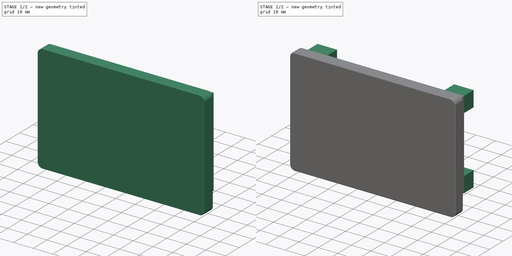
[diagram: build sequence overview — one tinted view per stage of 2, left to right]
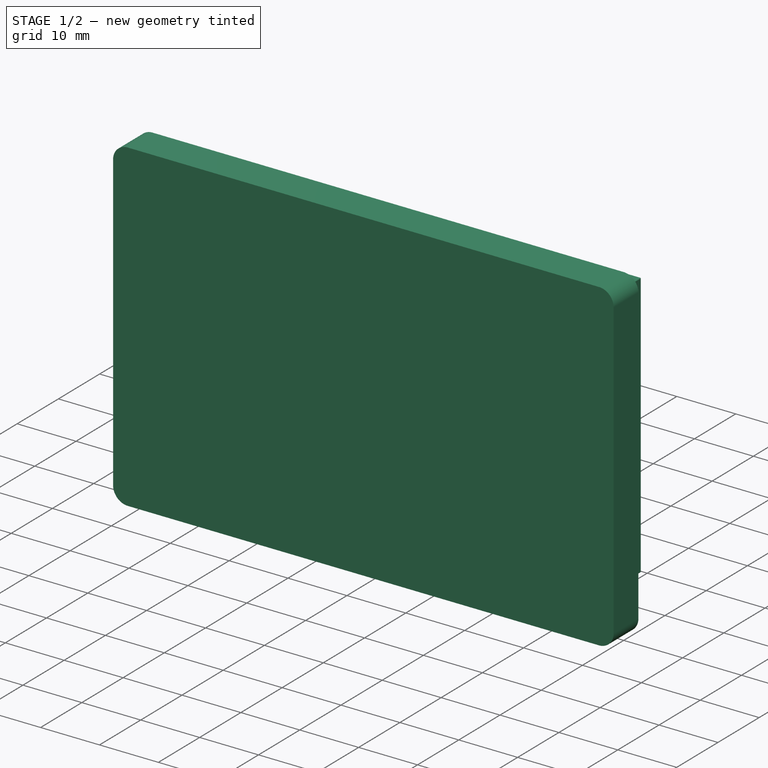
[diagram: stage 1 of 2 — iso view after this stage's code; geometry added in this stage tinted green]
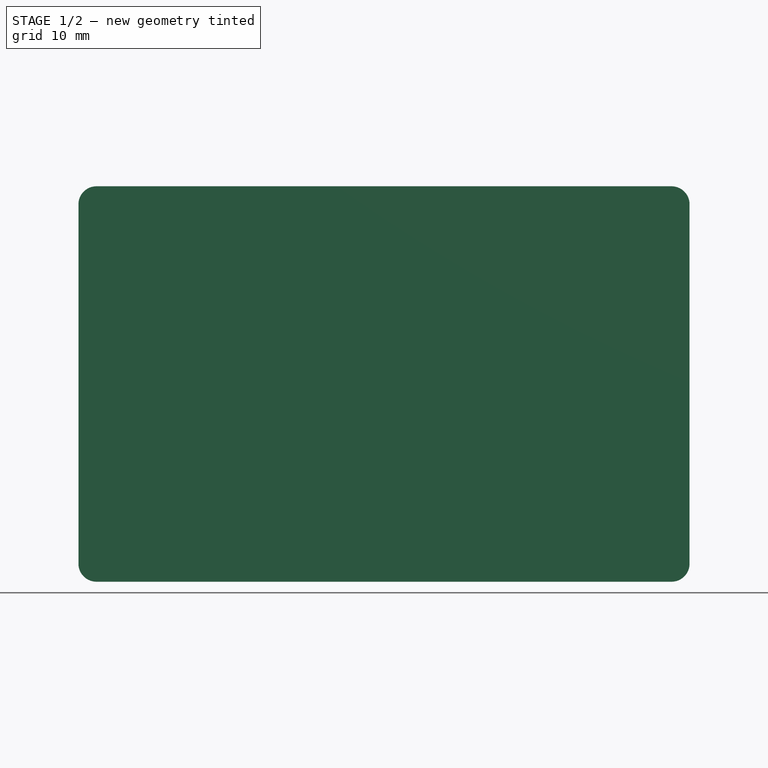
[diagram: stage 1 of 2 — front view after this stage's code; geometry added in this stage tinted green]
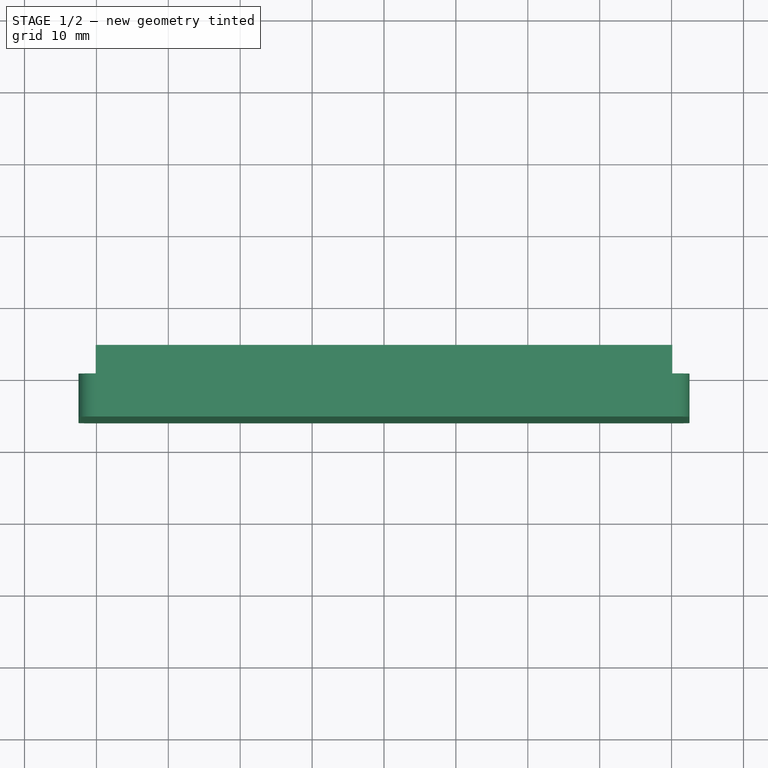
[diagram: stage 1 of 2 — top view after this stage's code; geometry added in this stage tinted green]
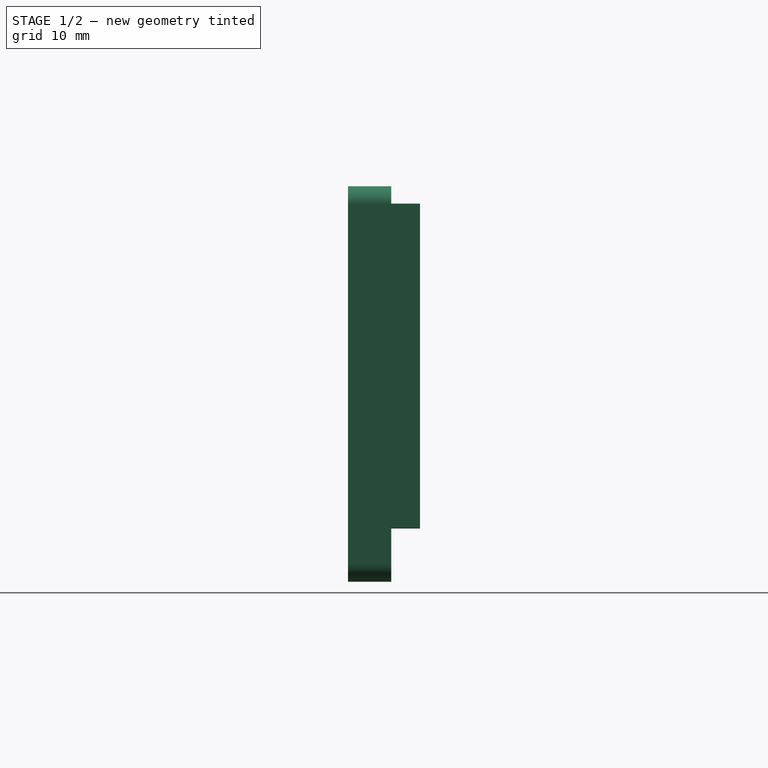
[diagram: stage 1 of 2 — right view after this stage's code; geometry added in this stage tinted green]
FCSTD DOCUMENT  (FreeCAD 0.20R29410 (Git))
Label: wood_side_panel
License: All rights reserved
LicenseURL: http://en.wikipedia.org/wiki/All_rights_reserved
objects: Sketcher::SketchObject×4, PartDesign::Pad×3, PartDesign::Fillet×1, PartDesign::Body×1
note: 13 computed .brp shape members not serialized (recipe doc carries the construction recipe); baked Part::Feature solids carry a one-line shape summary decoded from their .brp

FEATURE [Sketcher::SketchObject] Sketch007  label="SkBase"
  FullyConstrained = true
  MapMode = 5
  Placement = pos=(0,0,0) rot=(1,0,0;1.5708rad)
  Support = -> [XZ_Plane002]
  sketch-geometry (20):
    g0: ArcOfCircle CenterX=-40 CenterY=22.5 CenterZ=0 NormalX=0 NormalY=0 NormalZ=1 AngleXU=0 Radius=2.5 StartAngle=1.5708 EndAngle=3.14159
    g1: LineSegment StartX=-40 StartY=25 StartZ=0 EndX=40 EndY=25 EndZ=0
    g2: ArcOfCircle CenterX=40 CenterY=22.5 CenterZ=0 NormalX=0 NormalY=0 NormalZ=1 AngleXU=0 Radius=2.5 StartAngle=0 EndAngle=1.5708
    g3: LineSegment StartX=42.5 StartY=22.5 StartZ=0 EndX=42.5 EndY=-27.5 EndZ=0
    g4: ArcOfCircle CenterX=40 CenterY=-27.5 CenterZ=0 NormalX=0 NormalY=0 NormalZ=1 AngleXU=0 Radius=2.5 StartAngle=4.71239 EndAngle=6.28319
    g5: LineSegment StartX=40 StartY=-30 StartZ=0 EndX=-40 EndY=-30 EndZ=0
    g6: ArcOfCircle CenterX=-40 CenterY=-27.5 CenterZ=0 NormalX=0 NormalY=0 NormalZ=1 AngleXU=0 Radius=2.5 StartAngle=3.14159 EndAngle=4.71239
    g7: LineSegment StartX=-42.5 StartY=-27.5 StartZ=0 EndX=-42.5 EndY=22.5 EndZ=0
    g8: GeomPoint X=-42.5 Y=25 Z=0
    g9: GeomPoint X=42.5 Y=-30 Z=0
    g10: ArcOfCircle CenterX=-40 CenterY=22.5 CenterZ=0 NormalX=0 NormalY=0 NormalZ=1 AngleXU=0 Radius=0.1 StartAngle=1.5708 EndAngle=3.14159
    g11: LineSegment StartX=-40 StartY=22.6 StartZ=0 EndX=40 EndY=22.6 EndZ=0
    g12: ArcOfCircle CenterX=40 CenterY=22.5 CenterZ=0 NormalX=0 NormalY=0 NormalZ=1 AngleXU=0 Radius=0.1 StartAngle=4.5e-15 EndAngle=1.5708
    g13: LineSegment StartX=40.1 StartY=22.5 StartZ=0 EndX=40.1 EndY=-22.5 EndZ=0
    g14: ArcOfCircle CenterX=40 CenterY=-22.5 CenterZ=0 NormalX=0 NormalY=0 NormalZ=1 AngleXU=0 Radius=0.1 StartAngle=4.71239 EndAngle=6.28319
    g15: LineSegment StartX=40 StartY=-22.6 StartZ=0 EndX=-40 EndY=-22.6 EndZ=0
    g16: ArcOfCircle CenterX=-40 CenterY=-22.5 CenterZ=0 NormalX=0 NormalY=0 NormalZ=1 AngleXU=0 Radius=0.1 StartAngle=3.14159 EndAngle=4.71239
    g17: LineSegment StartX=-40.1 StartY=-22.5 StartZ=0 EndX=-40.1 EndY=22.5 EndZ=0
    g18: GeomPoint X=-40.1 Y=22.6 Z=0
    g19: GeomPoint X=40.1 Y=-22.6 Z=0
  constraints (44):
    c: Tangent(g0,g1) = 1.5708
    c: Tangent(g1,g2) = 1.5708
    c: Tangent(g2,g3) = 1.5708
    c: Tangent(g3,g4) = 1.5708
    c: Tangent(g4,g5) = 1.5708
    c: Tangent(g5,g6) = 1.5708
    c: Tangent(g6,g7) = 1.5708
    c: Tangent(g7,g0) = 1.5708
    c: Horizontal(g1)
    c: Horizontal(g5)
    c: Vertical(g3)
    c: Vertical(g7)
    c: Equal(g2,g4)
    c: Equal(g4,g6)
    c: PointOnObject(g8,g1)
    c: PointOnObject(g8,g7)
    c: PointOnObject(g9,g3)
    c: PointOnObject(g9,g5)
    c: Distance(g2,g7) = 85
    c: Distance(g4,g1) = 55
    c: Symmetric(g2,g0,g-2)
    c: Radius(g2) = 2.5
    c: Tangent(g10,g11) = 1.5708
    c: Tangent(g11,g12) = 1.5708
    c: Tangent(g12,g13) = 1.5708
    c: Tangent(g13,g14) = 1.5708
    c: Tangent(g14,g15) = 1.5708
    c: Tangent(g15,g16) = 1.5708
    c: Tangent(g16,g17) = 1.5708
    c: Tangent(g17,g10) = 1.5708
    c: Horizontal(g11)
    c: Horizontal(g15)
    c: Vertical(g13)
    c: Vertical(g17)
    c: Equal(g14,g16)
    c: PointOnObject(g18,g11)
    c: PointOnObject(g18,g17)
    c: PointOnObject(g19,g13)
    c: PointOnObject(g19,g15)
    c: Radius(g10) = 0.1
    c: Symmetric(g12,g10,g-2)
    c: Coincident(g10,g0)
    c: Distance(g14,g2) = 45
    c: Symmetric(g2,g14,g-1)
FEATURE [Sketcher::SketchObject] Sketch008  label="skMain"
  ExternalGeometry = -> [Sketch007]
  FullyConstrained = true
  MapMode = 5
  Placement = pos=(0,0,0) rot=(1,0,0;1.5708rad)
  Support = -> [XZ_Plane002]
  sketch-geometry (10):
    g0: ArcOfCircle CenterX=-40 CenterY=22.5 CenterZ=0 NormalX=0 NormalY=0 NormalZ=1 AngleXU=0 Radius=2.5 StartAngle=1.5708 EndAngle=3.14159
    g1: LineSegment StartX=-40 StartY=25 StartZ=0 EndX=40 EndY=25 EndZ=0
    g2: ArcOfCircle CenterX=40 CenterY=22.5 CenterZ=0 NormalX=0 NormalY=0 NormalZ=1 AngleXU=0 Radius=2.5 StartAngle=4e-16 EndAngle=1.5708
    g3: LineSegment StartX=42.5 StartY=22.5 StartZ=0 EndX=42.5 EndY=-27.5 EndZ=0
    g4: ArcOfCircle CenterX=40 CenterY=-27.5 CenterZ=0 NormalX=0 NormalY=0 NormalZ=1 AngleXU=0 Radius=2.5 StartAngle=4.71239 EndAngle=6.28319
    g5: LineSegment StartX=40 StartY=-30 StartZ=0 EndX=-40 EndY=-30 EndZ=0
    g6: ArcOfCircle CenterX=-40 CenterY=-27.5 CenterZ=0 NormalX=0 NormalY=0 NormalZ=1 AngleXU=0 Radius=2.5 StartAngle=3.14159 EndAngle=4.71239
    g7: LineSegment StartX=-42.5 StartY=-27.5 StartZ=0 EndX=-42.5 EndY=22.5 EndZ=0
    g8: GeomPoint X=-42.5 Y=25 Z=0
    g9: GeomPoint X=42.5 Y=-30 Z=0
  constraints (22):
    c: Tangent(g0,g1) = 1.5708
    c: Tangent(g1,g2) = 1.5708
    c: Tangent(g2,g3) = 1.5708
    c: Tangent(g3,g4) = 1.5708
    c: Tangent(g4,g5) = 1.5708
    c: Tangent(g5,g6) = 1.5708
    c: Tangent(g6,g7) = 1.5708
    c: Tangent(g7,g0) = 1.5708
    c: Horizontal(g1)
    c: Horizontal(g5)
    c: Vertical(g3)
    c: Vertical(g7)
    c: Equal(g0,g2)
    c: Equal(g2,g4)
    c: Equal(g4,g6)
    c: PointOnObject(g8,g1)
    c: PointOnObject(g8,g7)
    c: PointOnObject(g9,g3)
    c: PointOnObject(g9,g5)
    c: Equal(g2,g-4)
    c: Coincident(g1,g-4)
    c: Coincident(g5,g-5)
FEATURE [PartDesign::Pad] Pad001  label="pdMain"
  Direction = (0,-1,-2e-16)
  Length = 6
  Length2 = 10
  Placement = pos=(0,0,0) rot=(1,0,0;1.5708rad)
  Profile = -> Sketch008
  ReferenceAxis = -> Sketch008 [N_Axis]
  Type = 0
FEATURE [Sketcher::SketchObject] Sketch009  label="skInside"
  ExternalGeometry = -> [Sketch007]
  FullyConstrained = true
  MapMode = 5
  Placement = pos=(0,0,0) rot=(1,0,0;1.5708rad)
  Support = -> [XZ_Plane002]
  sketch-geometry (10):
    g0: ArcOfCircle CenterX=-40 CenterY=22.5 CenterZ=0 NormalX=0 NormalY=0 NormalZ=1 AngleXU=0 Radius=0.1 StartAngle=1.5708 EndAngle=3.14159
    g1: LineSegment StartX=-40 StartY=22.6 StartZ=0 EndX=40 EndY=22.6 EndZ=0
    g2: ArcOfCircle CenterX=40 CenterY=22.5 CenterZ=0 NormalX=0 NormalY=0 NormalZ=1 AngleXU=0 Radius=0.1 StartAngle=4.8e-15 EndAngle=1.5708
    g3: LineSegment StartX=40.1 StartY=22.5 StartZ=0 EndX=40.1 EndY=-22.5 EndZ=0
    g4: ArcOfCircle CenterX=40 CenterY=-22.5 CenterZ=0 NormalX=0 NormalY=0 NormalZ=1 AngleXU=0 Radius=0.1 StartAngle=4.71239 EndAngle=6.28319
    g5: LineSegment StartX=40 StartY=-22.6 StartZ=0 EndX=-40 EndY=-22.6 EndZ=0
    g6: ArcOfCircle CenterX=-40 CenterY=-22.5 CenterZ=0 NormalX=0 NormalY=0 NormalZ=1 AngleXU=0 Radius=0.1 StartAngle=3.14159 EndAngle=4.71239
    g7: LineSegment StartX=-40.1 StartY=-22.5 StartZ=0 EndX=-40.1 EndY=22.5 EndZ=0
    g8: GeomPoint X=-40.1 Y=22.6 Z=0
    g9: GeomPoint X=40.1 Y=-22.6 Z=0
  constraints (22):
    c: Tangent(g0,g1) = 1.5708
    c: Tangent(g1,g2) = 1.5708
    c: Tangent(g2,g3) = 1.5708
    c: Tangent(g3,g4) = 1.5708
    c: Tangent(g4,g5) = 1.5708
    c: Tangent(g5,g6) = 1.5708
    c: Tangent(g6,g7) = 1.5708
    c: Tangent(g7,g0) = 1.5708
    c: Horizontal(g1)
    c: Horizontal(g5)
    c: Vertical(g3)
    c: Vertical(g7)
    c: Equal(g0,g2)
    c: Equal(g2,g4)
    c: Equal(g4,g6)
    c: PointOnObject(g8,g1)
    c: PointOnObject(g8,g7)
    c: PointOnObject(g9,g3)
    c: PointOnObject(g9,g5)
    c: Equal(g2,g-4)
    c: Coincident(g2,g-4)
    c: Coincident(g5,g-5)
FEATURE [PartDesign::Pad] Pad002  label="pdInside"
  BaseFeature = -> Pad001
  Direction = (0,-1,-2e-16)
  Length = 4
  Length2 = 10
  Placement = pos=(0,0,0) rot=(1,0,0;1.5708rad)
  Profile = -> Sketch009
  ReferenceAxis = -> Sketch009 [N_Axis]
  Reversed = true
  Type = 0
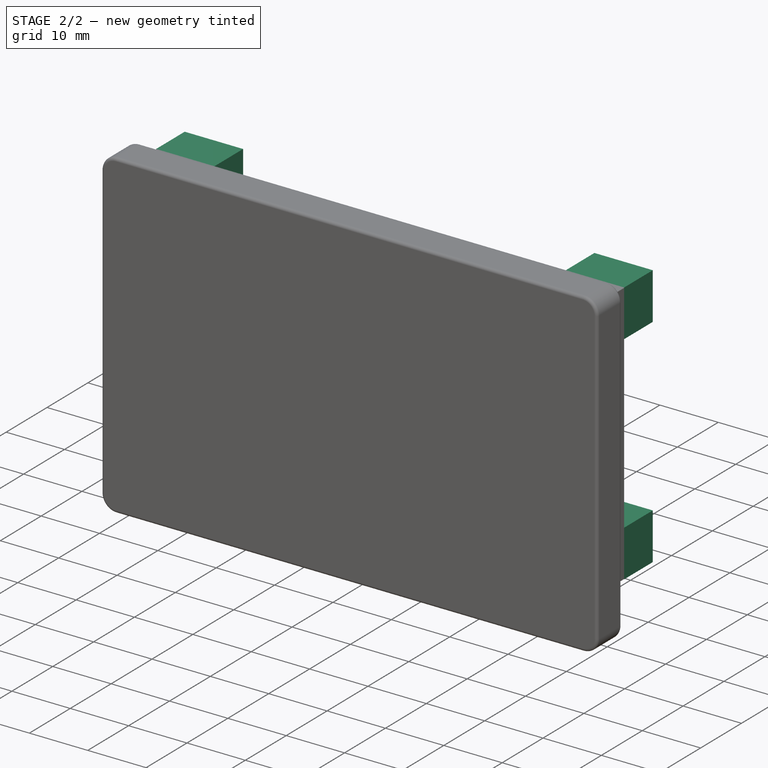
[diagram: stage 2 of 2 — iso view after this stage's code; geometry added in this stage tinted green]
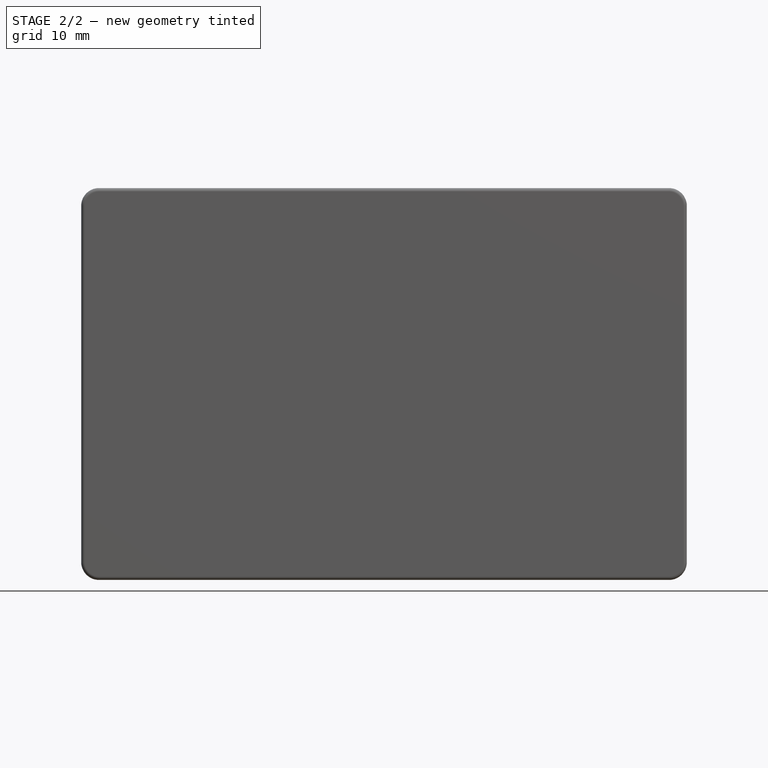
[diagram: stage 2 of 2 — front view after this stage's code; geometry added in this stage tinted green]
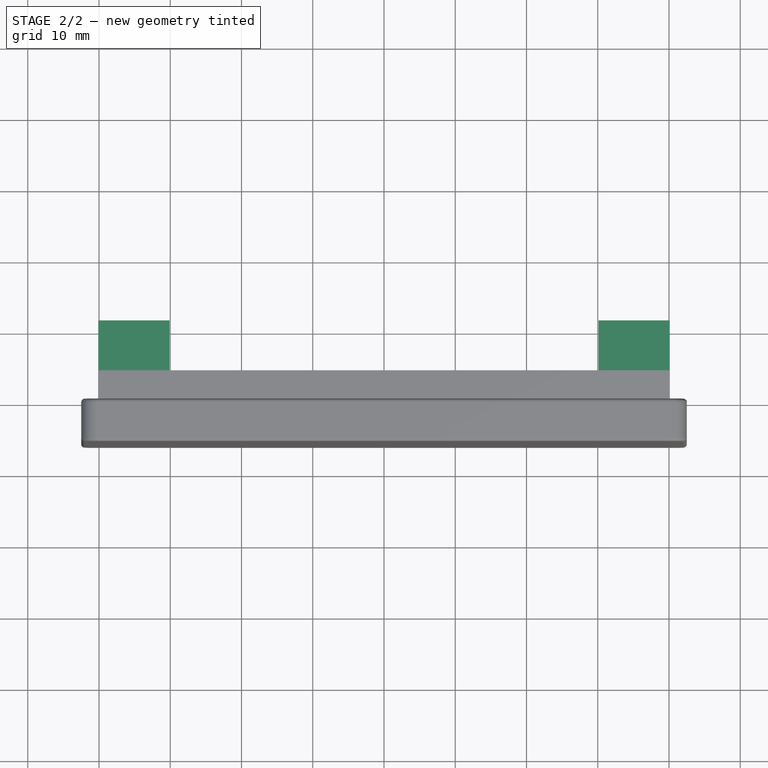
[diagram: stage 2 of 2 — top view after this stage's code; geometry added in this stage tinted green]
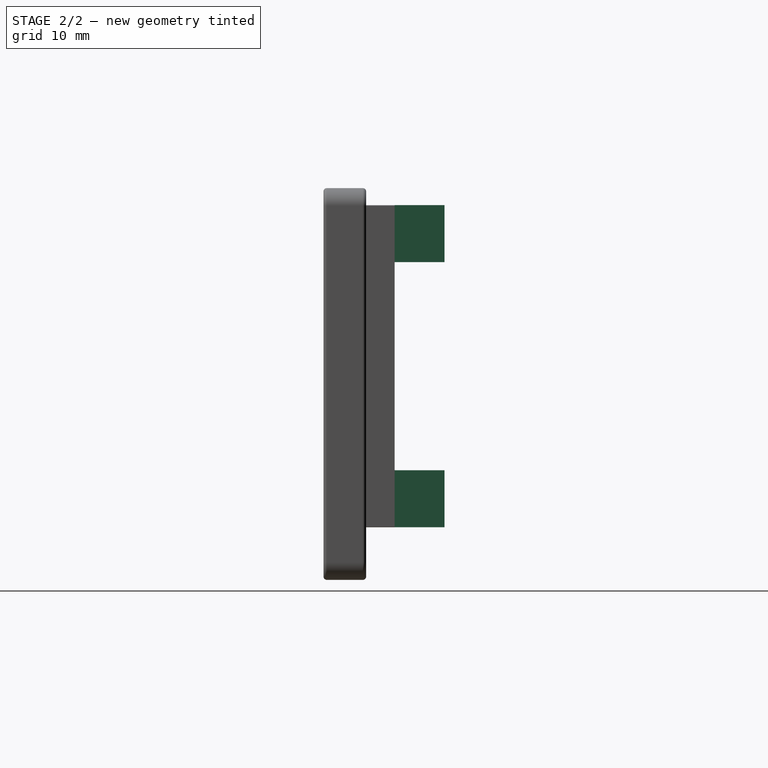
[diagram: stage 2 of 2 — right view after this stage's code; geometry added in this stage tinted green]
FEATURE [Sketcher::SketchObject] Sketch  label="skPads"
  AttachmentOffset = pos=(0,0,-4) rot=(0,0,1;0rad)
  ExternalGeometry = -> [Sketch007]
  FullyConstrained = true
  MapMode = 5
  Placement = pos=(0,4,9e-16) rot=(1,0,0;1.5708rad)
  Support = -> [XZ_Plane002]
  sketch-geometry (16):
    g0: LineSegment StartX=-40.1 StartY=22.6 StartZ=0 EndX=-30.1 EndY=22.6 EndZ=0
    g1: LineSegment StartX=-30.1 StartY=22.6 StartZ=0 EndX=-30.1 EndY=14.6 EndZ=0
    g2: LineSegment StartX=-30.1 StartY=14.6 StartZ=0 EndX=-40.1 EndY=14.6 EndZ=0
    g3: LineSegment StartX=-40.1 StartY=14.6 StartZ=0 EndX=-40.1 EndY=22.6 EndZ=0
    g4: LineSegment StartX=30.1 StartY=22.6 StartZ=0 EndX=40.1 EndY=22.6 EndZ=0
    g5: LineSegment StartX=40.1 StartY=22.6 StartZ=0 EndX=40.1 EndY=14.6 EndZ=0
    g6: LineSegment StartX=40.1 StartY=14.6 StartZ=0 EndX=30.1 EndY=14.6 EndZ=0
    g7: LineSegment StartX=30.1 StartY=14.6 StartZ=0 EndX=30.1 EndY=22.6 EndZ=0
    g8: LineSegment StartX=30.1 StartY=-14.6 StartZ=0 EndX=40.1 EndY=-14.6 EndZ=0
    g9: LineSegment StartX=40.1 StartY=-14.6 StartZ=0 EndX=40.1 EndY=-22.6 EndZ=0
    g10: LineSegment StartX=40.1 StartY=-22.6 StartZ=0 EndX=30.1 EndY=-22.6 EndZ=0
    g11: LineSegment StartX=30.1 StartY=-22.6 StartZ=0 EndX=30.1 EndY=-14.6 EndZ=0
    g12: LineSegment StartX=-40.1 StartY=-14.6 StartZ=0 EndX=-30.1 EndY=-14.6 EndZ=0
    g13: LineSegment StartX=-30.1 StartY=-14.6 StartZ=0 EndX=-30.1 EndY=-22.6 EndZ=0
    g14: LineSegment StartX=-30.1 StartY=-22.6 StartZ=0 EndX=-40.1 EndY=-22.6 EndZ=0
    g15: LineSegment StartX=-40.1 StartY=-22.6 StartZ=0 EndX=-40.1 EndY=-14.6 EndZ=0
  constraints (45):
    c: Coincident(g0,g1)
    c: Coincident(g1,g2)
    c: Coincident(g2,g3)
    c: Coincident(g3,g0)
    c: Horizontal(g0)
    c: Horizontal(g2)
    c: Vertical(g1)
    c: Vertical(g3)
    c: Coincident(g4,g5)
    c: Coincident(g5,g6)
    c: Coincident(g6,g7)
    c: Coincident(g7,g4)
    c: Horizontal(g4)
    c: Horizontal(g6)
    c: Vertical(g5)
    c: Vertical(g7)
    c: Coincident(g8,g9)
    c: Coincident(g9,g10)
    c: Coincident(g10,g11)
    c: Coincident(g11,g8)
    c: Horizontal(g8)
    c: Horizontal(g10)
    c: Vertical(g9)
    c: Vertical(g11)
    c: Coincident(g12,g13)
    c: Coincident(g13,g14)
    c: Coincident(g14,g15)
    c: Coincident(g15,g12)
    c: Horizontal(g12)
    c: Horizontal(g14)
    c: Vertical(g13)
    c: Vertical(g15)
    c: Symmetric(g8,g12,g-2)
    c: Symmetric(g8,g6,g-1)
    c: Symmetric(g6,g1,g-2)
    c: Equal(g1,g7)
    c: Equal(g7,g11)
    c: Equal(g11,g13)
    c: Equal(g12,g2)
    c: Equal(g2,g6)
    c: Equal(g6,g8)
    c: Distance(g7) = 8
    c: Distance(g6) = 10
    c: PointOnObject(g4,g-4)
    c: PointOnObject(g4,g-3)
FEATURE [PartDesign::Pad] Pad  label="pdPads"
  BaseFeature = -> Pad002
  Direction = (0,-1,-2e-16)
  Length = 7
  Length2 = 10
  Placement = pos=(0,0,0) rot=(1,0,0;1.5708rad)
  Profile = -> Sketch
  ReferenceAxis = -> Sketch [N_Axis]
  Reversed = true
  Type = 0
FEATURE [PartDesign::Fillet] Fillet  label="flMain"
  Base = -> Pad [Edge4,Edge7,Edge28,Edge27,Edge26,Edge25,Edge24,Edge10,Edge11,Edge6,Edge13,Edge15,Edge14,Edge12,Edge9,Edge3]
  BaseFeature = -> Pad
  Placement = pos=(0,0,0) rot=(1,0,0;1.5708rad)
  Radius = 0.5
  Refine = true
  SupportTransform = false
  UseAllEdges = false
FEATURE [PartDesign::Body] Body002  label="WoodSidePanel"
  Group = -> [Sketch007,Sketch008,Pad001,Sketch009,Pad002,Sketch,Pad,Fillet]
  Origin = -> Origin002
  Tip = -> Fillet
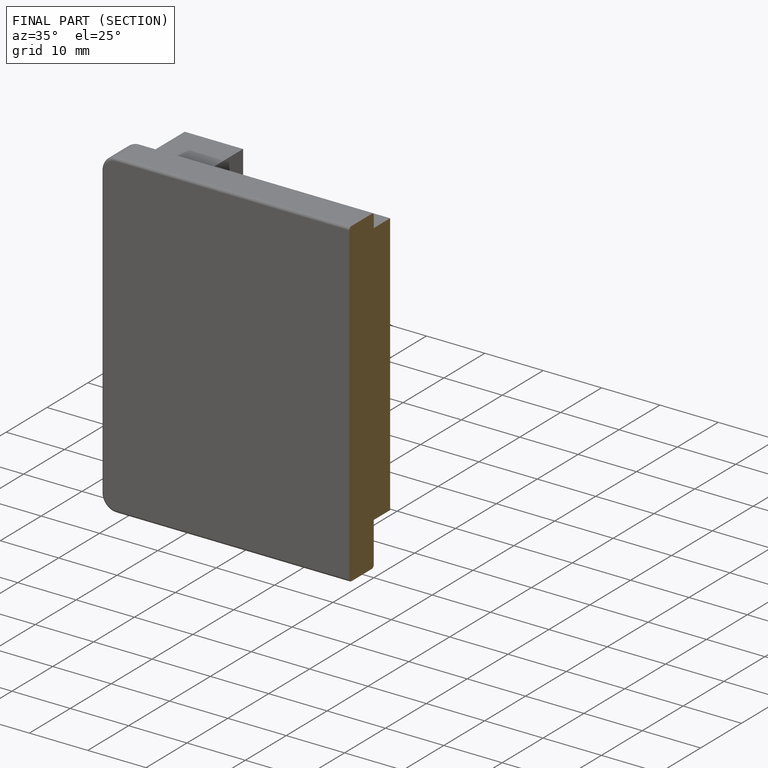
[diagram: finished part — half-section view (interior)]
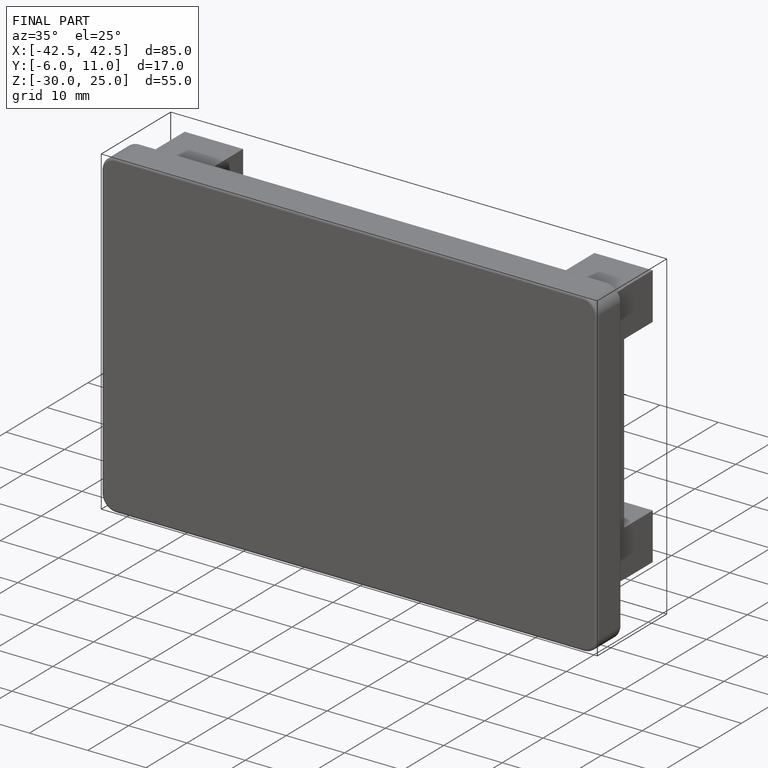
[diagram: finished part — iso view with bounding-box wireframe]
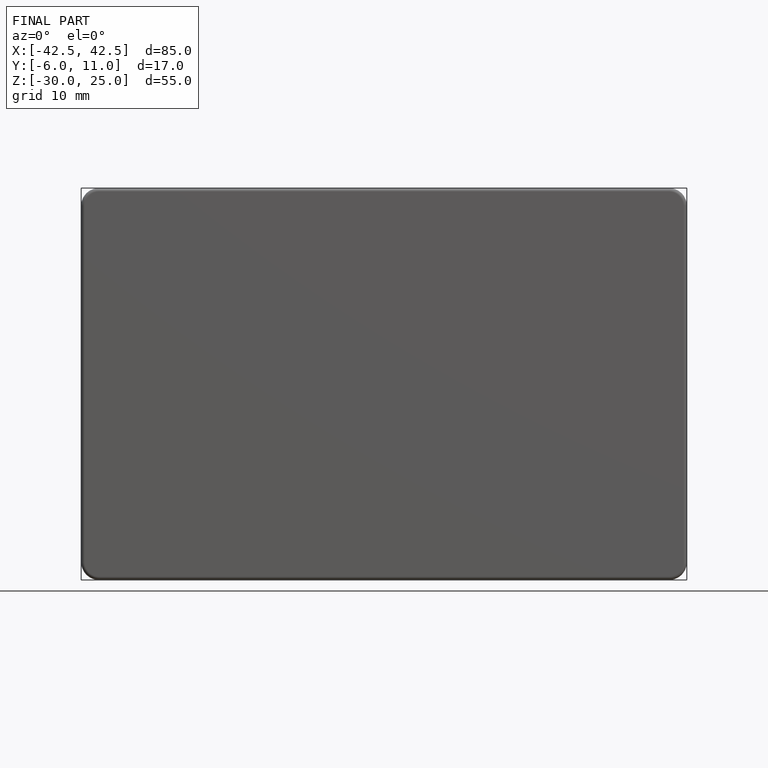
[diagram: finished part — front view with bounding-box wireframe]
